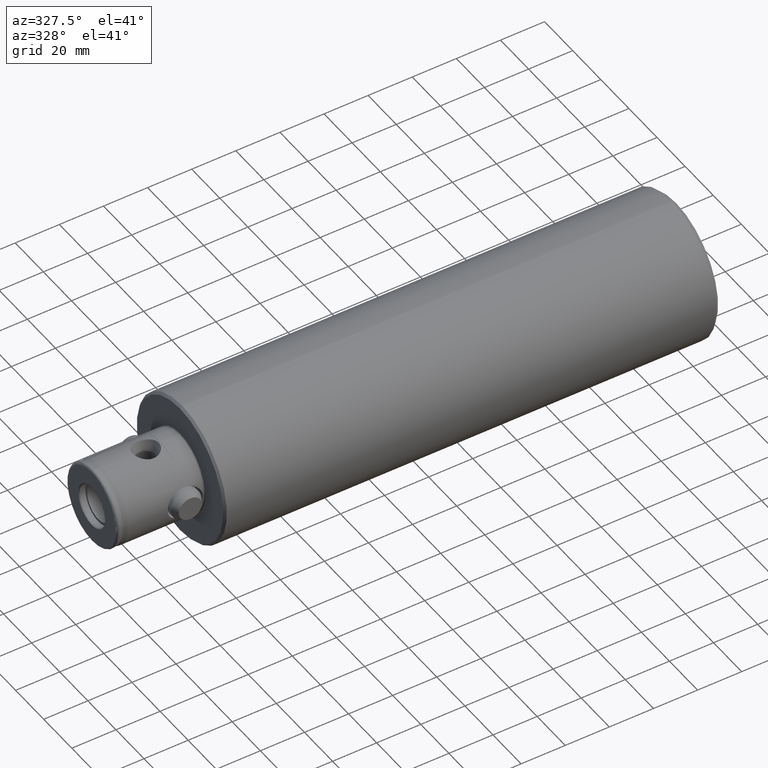
[diagram: clean part render]
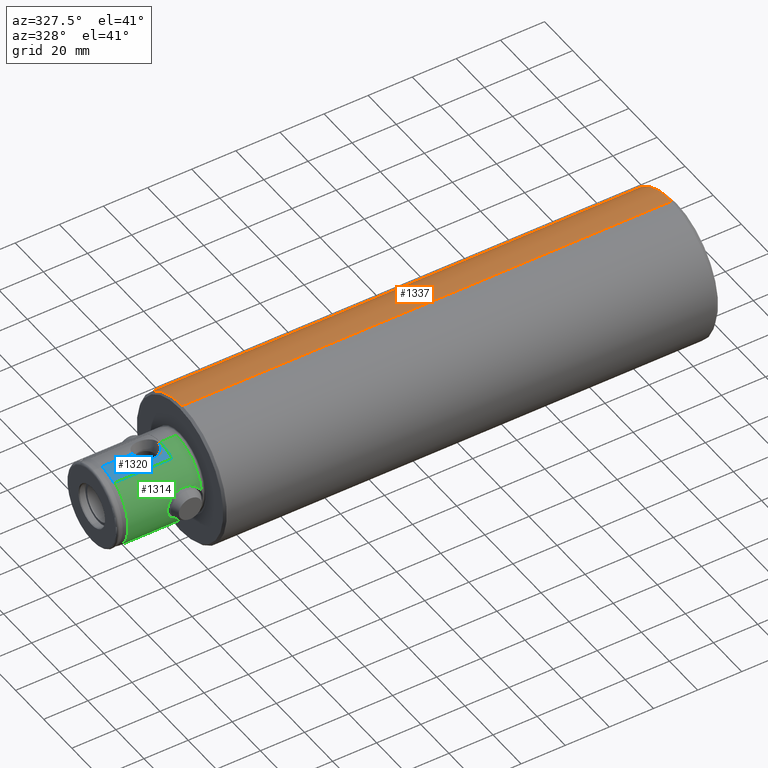
[diagram: same view with three faces highlighted in distinct colors, each labeled with its STEP entity id]
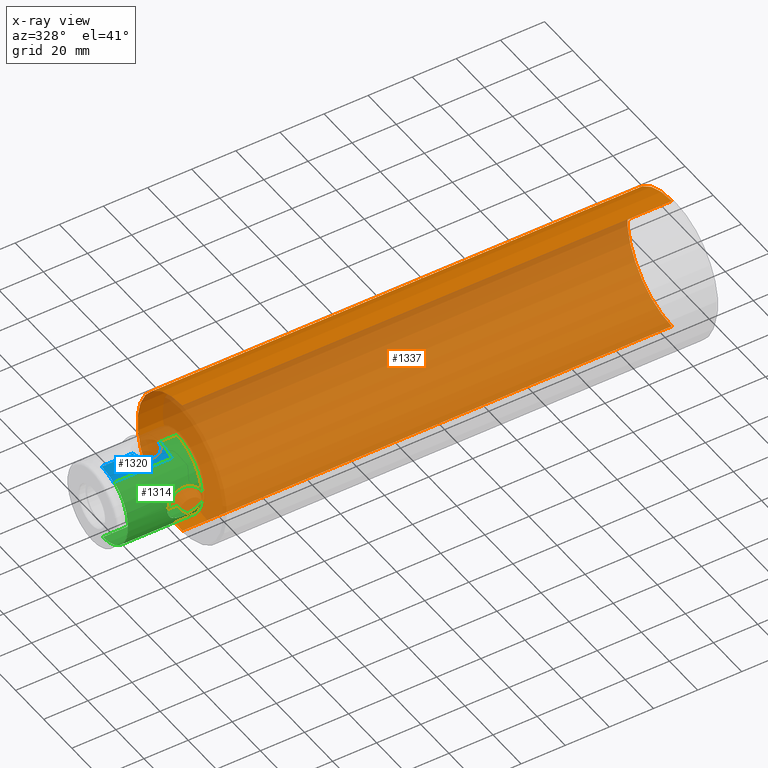
[diagram: x-ray of the same camera — body ghosted, the three highlighted faces saturated]
A machine part, auxiliary view with three faces highlighted in distinct colors.
The next image is the same camera in x-ray (body ghosted, the three faces saturated) — at least one of them is partly hidden behind the body in this view.
Their STEP definitions:

[orange] entity #1337 — the highlighted cylindrical surface (partial cylindrical patch) has radius 31.75 mm, axis along (-1, -0, -0).
#114 = ORIENTED_EDGE ( 'NONE', *, *, #2039, .T. ) ;
#128 = ORIENTED_EDGE ( 'NONE', *, *, #2017, .F. ) ;
#144 = ORIENTED_EDGE ( 'NONE', *, *, #2042, .F. ) ;
#399 = DIRECTION ( 'NONE',  ( 0.0000000000000000000, 0.0000000000000000000, 1.000000000000000000 ) ) ;
#400 = CARTESIAN_POINT ( 'NONE',  ( 0.0000000000000000000, 0.0000000000000000000, 0.0000000000000000000 ) ) ;
#401 = DIRECTION ( 'NONE',  ( -1.000000000000000000, -0.0000000000000000000, -0.0000000000000000000 ) ) ;
#525 = CARTESIAN_POINT ( 'NONE',  ( 0.0000000000000000000, 0.0000000000000000000, 31.75000000000000000 ) ) ;
#526 = DIRECTION ( 'NONE',  ( -1.000000000000000000, -0.0000000000000000000, -0.0000000000000000000 ) ) ;
#760 = CARTESIAN_POINT ( 'NONE',  ( 0.0000000000000000000, 3.888253587292846500E-015, -31.75000000000000000 ) ) ;
#761 = DIRECTION ( 'NONE',  ( -1.000000000000000000, -0.0000000000000000000, -0.0000000000000000000 ) ) ;
#768 = CARTESIAN_POINT ( 'NONE',  ( 41.00000000000000000, 0.0000000000000000000, 0.0000000000000000000 ) ) ;
#769 = DIRECTION ( 'NONE',  ( -1.000000000000000000, -0.0000000000000000000, -0.0000000000000000000 ) ) ;
#770 = DIRECTION ( 'NONE',  ( 0.0000000000000000000, 0.0000000000000000000, 1.000000000000000000 ) ) ;
#1337 = ADVANCED_FACE ( 'NONE', ( #3098 ), #3097, .T. ) ;
#1438 = CARTESIAN_POINT ( 'NONE',  ( 263.0000000000000000, 0.0000000000000000000, 31.75000000000000000 ) ) ;
#1439 = CARTESIAN_POINT ( 'NONE',  ( 263.0000000000000000, 3.888253587292846500E-015, -31.75000000000000000 ) ) ;
#1479 = CARTESIAN_POINT ( 'NONE',  ( 41.00000000000000000, 0.0000000000000000000, 31.75000000000000000 ) ) ;
#1480 = CARTESIAN_POINT ( 'NONE',  ( 41.00000000000000000, 3.888253587292846500E-015, -31.75000000000000000 ) ) ;
#1621 = CARTESIAN_POINT ( 'NONE',  ( 263.0000000000000000, 0.0000000000000000000, 0.0000000000000000000 ) ) ;
#1622 = DIRECTION ( 'NONE',  ( -1.000000000000000000, -0.0000000000000000000, -0.0000000000000000000 ) ) ;
#1623 = DIRECTION ( 'NONE',  ( 0.0000000000000000000, 0.0000000000000000000, 1.000000000000000000 ) ) ;
#1880 = EDGE_LOOP ( 'NONE', ( #2000, #114, #144, #128 ) ) ;
#2000 = ORIENTED_EDGE ( 'NONE', *, *, #2737, .T. ) ;
#2017 = EDGE_CURVE ( 'NONE', #2578, #2619, #3133, .T. ) ;
#2039 = EDGE_CURVE ( 'NONE', #2579, #2620, #3159, .T. ) ;
#2042 = EDGE_CURVE ( 'NONE', #2619, #2620, #3163, .T. ) ;
#2387 = CIRCLE ( 'NONE', #2940, 31.75000000000000000 ) ;
#2578 = VERTEX_POINT ( 'NONE', #1438 ) ;
#2579 = VERTEX_POINT ( 'NONE', #1439 ) ;
#2619 = VERTEX_POINT ( 'NONE', #1479 ) ;
#2620 = VERTEX_POINT ( 'NONE', #1480 ) ;
#2737 = EDGE_CURVE ( 'NONE', #2578, #2579, #2387, .T. ) ;
#2840 = AXIS2_PLACEMENT_3D ( 'NONE', #400, #401, #399 ) ;
#2861 = AXIS2_PLACEMENT_3D ( 'NONE', #768, #769, #770 ) ;
#2940 = AXIS2_PLACEMENT_3D ( 'NONE', #1621, #1622, #1623 ) ;
#3097 = CYLINDRICAL_SURFACE ( 'NONE', #2840, 31.75000000000000000 ) ;
#3098 = FACE_OUTER_BOUND ( 'NONE', #1880, .T. ) ;
#3133 = LINE ( 'NONE', #525, #3136 ) ;
#3136 = VECTOR ( 'NONE', #526, 1000.000000000000000 ) ;
#3159 = LINE ( 'NONE', #760, #3162 ) ;
#3162 = VECTOR ( 'NONE', #761, 1000.000000000000000 ) ;
#3163 = CIRCLE ( 'NONE', #2861, 31.75000000000000000 ) ;

[blue] entity #1320 — the highlighted cylindrical surface (partial cylindrical patch) has radius 18 mm, axis along (-1, 0, 0).
#32 = B_SPLINE_CURVE_WITH_KNOTS ( 'NONE', 3,
 ( #1627, #1624, #1629, #1630, #1631, #1632, #1633, #1634 ),
 .UNSPECIFIED., .F., .F.,
 ( 4, 2, 2, 4 ),
 ( 0.008809959860789792800, 0.01101086519072195400, 0.01321177052065411300, 0.01761358118051843300 ),
 .UNSPECIFIED. ) ;
#33 = B_SPLINE_CURVE_WITH_KNOTS ( 'NONE', 3,
 ( #1643, #1644, #1650, #1651, #1652, #1653, #1654, #1655, #1656, #1657, #1658, #1659, #1660, #1661, #1662, #1663, #1664, #1665, #1666, #1667, #1668, #1669, #1670, #1671, #1672, #1673, #1674, #1675, #1676, #1677, #1678, #1679, #1680, #1681, #1682, #1683, #1684, #1685, #1686, #1687, #1688, #1689 ),
 .UNSPECIFIED., .F., .F.,
 ( 4, 2, 2, 2, 2, 2, 2, 2, 2, 2, 2, 2, 2, 2, 2, 2, 2, 2, 2, 2, 4 ),
 ( 0.03175598414755257500, 0.03289099882672464500, 0.03345850616631067900, 0.03402601350589671400, 0.03516102818506878400, 0.03629604286424084600, 0.03743105754341291600, 0.03856607222258498500, 0.03970108690175704800, 0.04026859424134308900, 0.04083610158092912400, 0.04197111626010119300, 0.04310613093927326300, 0.04424114561844533200, 0.04480865295803136000, 0.04537616029761739500, 0.04651117497678947100, 0.04764618965596154100, 0.04821369699554757500, 0.04878120433513361000, 0.04991621901430568600 ),
 .UNSPECIFIED. ) ;
#72 = EDGE_LOOP ( 'NONE', ( #2549, #2550, #2551, #2552, #2553, #1890 ) ) ;
#344 = DIRECTION ( 'NONE',  ( 0.0000000000000000000, 0.0000000000000000000, 1.000000000000000000 ) ) ;
#345 = CARTESIAN_POINT ( 'NONE',  ( 31.00000000000000000, 0.0000000000000000000, -0.06999999999999996500 ) ) ;
#346 = DIRECTION ( 'NONE',  ( -1.000000000000000000, 0.0000000000000000000, 0.0000000000000000000 ) ) ;
#1320 = ADVANCED_FACE ( 'NONE', ( #3066 ), #3071, .T. ) ;
#1423 = CARTESIAN_POINT ( 'NONE',  ( 31.00000000000000000, -8.499999999999996400, 15.79663165262243400 ) ) ;
#1440 = CARTESIAN_POINT ( 'NONE',  ( 31.00000000000000000, 0.0000000000000000000, 17.93000000000000000 ) ) ;
#1442 = CARTESIAN_POINT ( 'NONE',  ( 18.57554470225370100, 7.387272118025272300E-015, 17.93000000000003200 ) ) ;
#1443 = CARTESIAN_POINT ( 'NONE',  ( 30.42445529774620600, -1.071667539742744500E-023, 17.93000000000000000 ) ) ;
#1445 = CARTESIAN_POINT ( 'NONE',  ( 4.501924119433152100, 1.318032018692837200E-015, 17.93000000000000000 ) ) ;
#1446 = CARTESIAN_POINT ( 'NONE',  ( 4.561173011721219700, -8.499999999999996400, 15.79663165262243400 ) ) ;
#1563 = CARTESIAN_POINT ( 'NONE',  ( 31.00000000000000000, -8.499999999999996400, 15.79663165262243400 ) ) ;
#1564 = DIRECTION ( 'NONE',  ( -1.000000000000000000, 0.0000000000000000000, 0.0000000000000000000 ) ) ;
#1624 = CARTESIAN_POINT ( 'NONE',  ( 4.501924119433151200, -0.7337060415290775900, 17.93000000000000000 ) ) ;
#1626 = CARTESIAN_POINT ( 'NONE',  ( 31.00000000000000000, 0.0000000000000000000, 17.93000000000000000 ) ) ;
#1627 = CARTESIAN_POINT ( 'NONE',  ( 4.501924119433152100, 1.318032018692837200E-015, 17.93000000000000000 ) ) ;
#1628 = DIRECTION ( 'NONE',  ( -1.000000000000000000, 0.0000000000000000000, 0.0000000000000000000 ) ) ;
#1629 = CARTESIAN_POINT ( 'NONE',  ( 4.503165590156450900, -1.466782719062482500, 17.88530954530815000 ) ) ;
#1630 = CARTESIAN_POINT ( 'NONE',  ( 4.508174742434701600, -2.931655298299229400, 17.70498212726888100 ) ) ;
#1631 = CARTESIAN_POINT ( 'NONE',  ( 4.511979581276668800, -3.666865337209433800, 17.56800739893154200 ) ) ;
#1632 = CARTESIAN_POINT ( 'NONE',  ( 4.526961478556947000, -5.815333669717912100, 17.02861748603704200 ) ) ;
#1633 = CARTESIAN_POINT ( 'NONE',  ( 4.541659314675777100, -7.188126997925746100, 16.49942231177207600 ) ) ;
#1634 = CARTESIAN_POINT ( 'NONE',  ( 4.561173011721219700, -8.499999999999996400, 15.79663165262243400 ) ) ;
#1635 = CARTESIAN_POINT ( 'NONE',  ( 31.00000000000000000, 0.0000000000000000000, -0.06999999999999996500 ) ) ;
#1636 = DIRECTION ( 'NONE',  ( -1.000000000000000000, -0.0000000000000000000, -0.0000000000000000000 ) ) ;
#1637 = DIRECTION ( 'NONE',  ( 0.0000000000000000000, 0.0000000000000000000, -1.000000000000000000 ) ) ;
#1638 = CARTESIAN_POINT ( 'NONE',  ( 31.00000000000000000, 0.0000000000000000000, 17.93000000000000000 ) ) ;
#1639 = DIRECTION ( 'NONE',  ( -1.000000000000000000, 0.0000000000000000000, 0.0000000000000000000 ) ) ;
#1643 = CARTESIAN_POINT ( 'NONE',  ( 18.57554470225370100, 7.387272118025272300E-015, 17.93000000000003200 ) ) ;
#1644 = CARTESIAN_POINT ( 'NONE',  ( 18.57554470225379400, -0.3831136838248300800, 17.93000000000000000 ) ) ;
#1650 = CARTESIAN_POINT ( 'NONE',  ( 18.61557294335920400, -0.7615478417170330500, 17.91778346280447900 ) ) ;
#1651 = CARTESIAN_POINT ( 'NONE',  ( 18.73492686664313200, -1.322296669584290400, 17.88234270986931700 ) ) ;
#1652 = CARTESIAN_POINT ( 'NONE',  ( 18.78506986485922400, -1.509078302526126300, 17.86755934289542200 ) ) ;
#1653 = CARTESIAN_POINT ( 'NONE',  ( 18.90338198084888100, -1.872716497970738900, 17.83324790146408000 ) ) ;
#1654 = CARTESIAN_POINT ( 'NONE',  ( 18.97153989019681200, -2.050110156723244700, 17.81372150429449200 ) ) ;
#1655 = CARTESIAN_POINT ( 'NONE',  ( 19.20209450050449700, -2.569569579887862600, 17.74906558059581100 ) ) ;
#1656 = CARTESIAN_POINT ( 'NONE',  ( 19.39192034899709300, -2.901195590925283800, 17.69744489833552200 ) ) ;
#1657 = CARTESIAN_POINT ( 'NONE',  ( 19.83483833083843000, -3.520494726701620000, 17.58517348970151800 ) ) ;
#1658 = CARTESIAN_POINT ( 'NONE',  ( 20.08494431174514700, -3.805031565792131900, 17.52525899257014400 ) ) ;
#1659 = CARTESIAN_POINT ( 'NONE',  ( 20.64195123594209100, -4.325654087729326100, 17.40455638766276900 ) ) ;
#1660 = CARTESIAN_POINT ( 'NONE',  ( 20.94034946229247800, -4.553824916090396100, 17.34565856833051700 ) ) ;
#1661 = CARTESIAN_POINT ( 'NONE',  ( 21.57490829159470300, -4.951432438418799500, 17.23681373167354600 ) ) ;
#1662 = CARTESIAN_POINT ( 'NONE',  ( 21.91104107646931700, -5.120805884859581900, 17.18683709147466100 ) ) ;
#1663 = CARTESIAN_POINT ( 'NONE',  ( 22.62338941257611000, -5.398507192310133500, 17.10198880172835700 ) ) ;
#1664 = CARTESIAN_POINT ( 'NONE',  ( 22.99088402668140300, -5.503021733578008500, 17.06832382586234000 ) ) ;
#1665 = CARTESIAN_POINT ( 'NONE',  ( 23.55033296111776800, -5.607752895763296100, 17.03422332057631600 ) ) ;
#1666 = CARTESIAN_POINT ( 'NONE',  ( 23.73864113217325300, -5.634102640128214800, 17.02553254342923200 ) ) ;
#1667 = CARTESIAN_POINT ( 'NONE',  ( 24.11898480793087500, -5.669398008010491100, 17.01385997746745500 ) ) ;
#1668 = CARTESIAN_POINT ( 'NONE',  ( 24.31210376769511700, -5.678318216710273700, 17.01088704511940400 ) ) ;
#1669 = CARTESIAN_POINT ( 'NONE',  ( 24.88821135867466300, -5.677932562585729300, 17.01101524758219300 ) ) ;
#1670 = CARTESIAN_POINT ( 'NONE',  ( 25.26696886245772700, -5.642236274775486400, 17.02299926818011100 ) ) ;
#1671 = CARTESIAN_POINT ( 'NONE',  ( 26.01419118754804000, -5.501786752466307100, 17.06872214293657600 ) ) ;
#1672 = CARTESIAN_POINT ( 'NONE',  ( 26.38627019785123600, -5.395240042650288000, 17.10301079295810900 ) ) ;
#1673 = CARTESIAN_POINT ( 'NONE',  ( 27.09328471493246600, -5.118611019039358100, 17.18748347959928000 ) ) ;
#1674 = CARTESIAN_POINT ( 'NONE',  ( 27.43017621194513100, -4.948965417227853400, 17.23755263737323400 ) ) ;
#1675 = CARTESIAN_POINT ( 'NONE',  ( 27.91080199915923600, -4.646718315353849600, 17.32019603531960800 ) ) ;
#1676 = CARTESIAN_POINT ( 'NONE',  ( 28.06765884811124300, -4.537289672149269900, 17.34916469177915500 ) ) ;
#1677 = CARTESIAN_POINT ( 'NONE',  ( 28.36779536209322600, -4.305483147489617600, 17.40790350685691100 ) ) ;
#1678 = CARTESIAN_POINT ( 'NONE',  ( 28.51121673220889700, -4.183164077528353200, 17.43767209451188200 ) ) ;
#1679 = CARTESIAN_POINT ( 'NONE',  ( 28.92198423547164800, -3.797120882136648200, 17.52692156260111700 ) ) ;
#1680 = CARTESIAN_POINT ( 'NONE',  ( 29.17004880996612200, -3.514525437097584200, 17.58636581486995700 ) ) ;
#1681 = CARTESIAN_POINT ( 'NONE',  ( 29.61198953805598300, -2.894847298418376200, 17.69848338928661500 ) ) ;
#1682 = CARTESIAN_POINT ( 'NONE',  ( 29.80049634298832800, -2.564430172086265000, 17.74977998943963400 ) ) ;
#1683 = CARTESIAN_POINT ( 'NONE',  ( 30.02971255283868900, -2.046933455186016100, 17.81407891603380700 ) ) ;
#1684 = CARTESIAN_POINT ( 'NONE',  ( 30.09746334228503200, -1.870298372181085300, 17.83349168383869800 ) ) ;
#1685 = CARTESIAN_POINT ( 'NONE',  ( 30.21508621675754800, -1.508417022360138700, 17.86760598744768200 ) ) ;
#1686 = CARTESIAN_POINT ( 'NONE',  ( 30.26519079791910000, -1.321911464954058600, 17.88237726613494900 ) ) ;
#1687 = CARTESIAN_POINT ( 'NONE',  ( 30.38481521319514300, -0.7593876761666518100, 17.91789949006138000 ) ) ;
#1688 = CARTESIAN_POINT ( 'NONE',  ( 30.42445529774621300, -0.3812456403072548800, 17.93000000000000300 ) ) ;
#1689 = CARTESIAN_POINT ( 'NONE',  ( 30.42445529774620600, -1.071667539742744500E-023, 17.93000000000000000 ) ) ;
#1890 = ORIENTED_EDGE ( 'NONE', *, *, #2730, .F. ) ;
#2377 = LINE ( 'NONE', #1563, #2380 ) ;
#2380 = VECTOR ( 'NONE', #1564, 1000.000000000000000 ) ;
#2391 = LINE ( 'NONE', #1626, #2394 ) ;
#2394 = VECTOR ( 'NONE', #1628, 1000.000000000000000 ) ;
#2395 = CIRCLE ( 'NONE', #2941, 18.00000000000000400 ) ;
#2397 = LINE ( 'NONE', #1638, #2399 ) ;
#2399 = VECTOR ( 'NONE', #1639, 1000.000000000000000 ) ;
#2549 = ORIENTED_EDGE ( 'NONE', *, *, #2742, .T. ) ;
#2550 = ORIENTED_EDGE ( 'NONE', *, *, #2740, .T. ) ;
#2551 = ORIENTED_EDGE ( 'NONE', *, *, #2746, .F. ) ;
#2552 = ORIENTED_EDGE ( 'NONE', *, *, #2745, .T. ) ;
#2553 = ORIENTED_EDGE ( 'NONE', *, *, #2741, .T. ) ;
#2563 = VERTEX_POINT ( 'NONE', #1423 ) ;
#2580 = VERTEX_POINT ( 'NONE', #1440 ) ;
#2582 = VERTEX_POINT ( 'NONE', #1442 ) ;
#2583 = VERTEX_POINT ( 'NONE', #1443 ) ;
#2585 = VERTEX_POINT ( 'NONE', #1445 ) ;
#2586 = VERTEX_POINT ( 'NONE', #1446 ) ;
#2730 = EDGE_CURVE ( 'NONE', #2563, #2586, #2377, .T. ) ;
#2740 = EDGE_CURVE ( 'NONE', #2580, #2583, #2391, .T. ) ;
#2741 = EDGE_CURVE ( 'NONE', #2585, #2586, #32, .T. ) ;
#2742 = EDGE_CURVE ( 'NONE', #2563, #2580, #2395, .T. ) ;
#2745 = EDGE_CURVE ( 'NONE', #2582, #2585, #2397, .T. ) ;
#2746 = EDGE_CURVE ( 'NONE', #2582, #2583, #33, .T. ) ;
#2823 = AXIS2_PLACEMENT_3D ( 'NONE', #345, #346, #344 ) ;
#2941 = AXIS2_PLACEMENT_3D ( 'NONE', #1635, #1636, #1637 ) ;
#3066 = FACE_OUTER_BOUND ( 'NONE', #72, .T. ) ;
#3071 = CYLINDRICAL_SURFACE ( 'NONE', #2823, 18.00000000000000400 ) ;

[green] entity #1314 — the highlighted cylindrical surface (partial cylindrical patch) has radius 18 mm, axis along (-1, -0, -0).
#13 = B_SPLINE_CURVE_WITH_KNOTS ( 'NONE', 3,
 ( #662, #661, #668, #669, #670, #671, #672, #673, #674, #675, #676, #677, #678, #679, #680, #681, #682, #683, #684, #685, #686, #687, #688, #689, #690, #691, #692, #693, #694, #695, #696, #697, #698, #699, #700, #701, #702, #703, #704, #705 ),
 .UNSPECIFIED., .F., .F.,
 ( 4, 2, 2, 2, 2, 2, 2, 2, 2, 2, 2, 2, 2, 2, 2, 2, 2, 2, 2, 4 ),
 ( 0.005951930373223755100, 0.007274197686235172500, 0.008596464999246589800, 0.009918732312258007200, 0.01124099962526942600, 0.01190213328177513200, 0.01256326693828083800, 0.01388553425129225800, 0.01520780156430367800, 0.01653006887731509700, 0.01719120253382081000, 0.01785233619032652900, 0.01917460350333796700, 0.01983573715984368900, 0.02049687081634941200, 0.02181913812936082600, 0.02314140544237224300, 0.02446367275538366100, 0.02578594006839508200, 0.02710820738140650200 ),
 .UNSPECIFIED. ) ;
#23 = B_SPLINE_CURVE_WITH_KNOTS ( 'NONE', 3,
 ( #1034, #1035, #1039, #1040, #1041, #1042, #1043, #1044, #1045, #1046, #1047, #1048, #1049, #1050, #1051, #1052, #1053, #1054, #1055, #1056, #1057, #1058, #1059, #1060, #1061, #1062, #1063, #1064, #1065, #1066, #1067, #1068, #1069, #1070, #1071, #1072, #1073, #1074 ),
 .UNSPECIFIED., .F., .F.,
 ( 4, 2, 2, 2, 2, 2, 2, 2, 2, 2, 2, 2, 2, 2, 2, 2, 2, 2, 4 ),
 ( 0.03295201915210513300, 0.03427289837824195500, 0.03559377760437877600, 0.03691465683051559800, 0.03823553605665242600, 0.03955641528278924800, 0.04087729450892606900, 0.04219817373506289100, 0.04351905296119972000, 0.04483993218733655500, 0.04616081141347339000, 0.04748169063961021900, 0.04814213025267863300, 0.04880256986574705400, 0.05012344909188390400, 0.05144432831802074600, 0.05276520754415758900, 0.05342564715722601000, 0.05408608677029443100 ),
 .UNSPECIFIED. ) ;
#326 = DIRECTION ( 'NONE',  ( 0.0000000000000000000, 0.0000000000000000000, 1.000000000000000000 ) ) ;
#327 = CARTESIAN_POINT ( 'NONE',  ( 0.0000000000000000000, 0.0000000000000000000, 0.0000000000000000000 ) ) ;
#328 = DIRECTION ( 'NONE',  ( -1.000000000000000000, -0.0000000000000000000, -0.0000000000000000000 ) ) ;
#661 = CARTESIAN_POINT ( 'NONE',  ( 22.93190200199921200, -18.00000000000000000, 0.4416652142448477800 ) ) ;
#662 = CARTESIAN_POINT ( 'NONE',  ( 22.93190200199920200, -17.99999999999999600, 4.441690793177769600E-021 ) ) ;
#668 = CARTESIAN_POINT ( 'NONE',  ( 22.97716631395284300, -17.98376514896291700, 0.8812749548977210100 ) ) ;
#669 = CARTESIAN_POINT ( 'NONE',  ( 23.16028841739990100, -17.91948188900300600, 1.756309570911909000 ) ) ;
#670 = CARTESIAN_POINT ( 'NONE',  ( 23.29503960607756200, -17.87255946622037300, 2.176647487686613300 ) ) ;
#671 = CARTESIAN_POINT ( 'NONE',  ( 23.64278849125274800, -17.75569677428627800, 2.983522786713074500 ) ) ;
#672 = CARTESIAN_POINT ( 'NONE',  ( 23.85847120594464200, -17.68492855341568800, 3.373394558111742800 ) ) ;
#673 = CARTESIAN_POINT ( 'NONE',  ( 24.35063099387324900, -17.53161761748235000, 4.096202204298264400 ) ) ;
#674 = CARTESIAN_POINT ( 'NONE',  ( 24.62761903909061400, -17.44884491123164900, 4.431981430358424800 ) ) ;
#675 = CARTESIAN_POINT ( 'NONE',  ( 25.08744042483029400, -17.32095608078512300, 4.900065558880498000 ) ) ;
#676 = CARTESIAN_POINT ( 'NONE',  ( 25.24843004934503900, -17.27764558184226800, 5.050242172774598100 ) ) ;
#677 = CARTESIAN_POINT ( 'NONE',  ( 25.57977056106120300, -17.19210908527251600, 5.334169856267678300 ) ) ;
#678 = CARTESIAN_POINT ( 'NONE',  ( 25.75073583273174500, -17.14970568692032100, 5.468593516449462100 ) ) ;
#679 = CARTESIAN_POINT ( 'NONE',  ( 26.27907961518929300, -17.02485688331502400, 5.850293059941749100 ) ) ;
#680 = CARTESIAN_POINT ( 'NONE',  ( 26.65178746641845800, -16.94475705747026200, 6.076163919882772800 ) ) ;
#681 = CARTESIAN_POINT ( 'NONE',  ( 27.43890271601962600, -16.79760225473844300, 6.471871306629907400 ) ) ;
#682 = CARTESIAN_POINT ( 'NONE',  ( 27.84631252032698600, -16.73197632104198000, 6.637923214853056000 ) ) ;
#683 = CARTESIAN_POINT ( 'NONE',  ( 28.67993101842047600, -16.62278497628824800, 6.906813726044728900 ) ) ;
#684 = CARTESIAN_POINT ( 'NONE',  ( 29.10744282103609800, -16.57896270672707200, 7.010286325545902000 ) ) ;
#685 = CARTESIAN_POINT ( 'NONE',  ( 29.76544652395585200, -16.53279694942170500, 7.118156694572547800 ) ) ;
#686 = CARTESIAN_POINT ( 'NONE',  ( 29.98759883883632000, -16.52071364908083200, 7.146080882712132300 ) ) ;
#687 = CARTESIAN_POINT ( 'NONE',  ( 30.42950263124843200, -16.50379690978528300, 7.185063605685842300 ) ) ;
#688 = CARTESIAN_POINT ( 'NONE',  ( 30.65026060274260500, -16.49888225444744800, 7.196311294525649800 ) ) ;
#689 = CARTESIAN_POINT ( 'NONE',  ( 31.31196230718752500, -16.49474406451295000, 7.205793906403901200 ) ) ;
#690 = CARTESIAN_POINT ( 'NONE',  ( 31.75233693816384300, -16.50614080132864100, 7.179931034761770200 ) ) ;
#691 = CARTESIAN_POINT ( 'NONE',  ( 32.41174086432555900, -16.54411024394628900, 7.091786777001734900 ) ) ;
#692 = CARTESIAN_POINT ( 'NONE',  ( 32.63229722781335300, -16.56034169485642900, 7.053902984147537600 ) ) ;
#693 = CARTESIAN_POINT ( 'NONE',  ( 33.06632984982247300, -16.59899749722229600, 6.962452617244408300 ) ) ;
#694 = CARTESIAN_POINT ( 'NONE',  ( 33.28019592390903400, -16.62140980620988300, 6.908915790884719900 ) ) ;
#695 = CARTESIAN_POINT ( 'NONE',  ( 33.91261362665141400, -16.69695338979934000, 6.725271214225778700 ) ) ;
#696 = CARTESIAN_POINT ( 'NONE',  ( 34.32204564670358600, -16.75839360627169900, 6.572304845395327900 ) ) ;
#697 = CARTESIAN_POINT ( 'NONE',  ( 35.11653427350414300, -16.89846424721143600, 6.203293748425248400 ) ) ;
#698 = CARTESIAN_POINT ( 'NONE',  ( 35.50250194721001400, -16.97748648343946000, 5.985874656659777100 ) ) ;
#699 = CARTESIAN_POINT ( 'NONE',  ( 36.22267140391623000, -17.14109667194910700, 5.499867960552037100 ) ) ;
#700 = CARTESIAN_POINT ( 'NONE',  ( 36.56052000145321300, -17.22626953673155400, 5.229929271370539600 ) ) ;
#701 = CARTESIAN_POINT ( 'NONE',  ( 37.19036873887327500, -17.39649253758278700, 4.632339552050337000 ) ) ;
#702 = CARTESIAN_POINT ( 'NONE',  ( 37.48454750326428800, -17.48229323643473500, 4.300980811526033100 ) ) ;
#703 = CARTESIAN_POINT ( 'NONE',  ( 38.00068325230647300, -17.63995700660955600, 3.600129101959181000 ) ) ;
#704 = CARTESIAN_POINT ( 'NONE',  ( 38.22531472327443000, -17.71246892246847400, 3.229107380082117300 ) ) ;
#705 = CARTESIAN_POINT ( 'NONE',  ( 38.41455850893560600, -17.77522644697580400, 2.835722969320484000 ) ) ;
#933 = DIRECTION ( 'NONE',  ( -1.000000000000000000, -0.0000000000000000000, -0.0000000000000000000 ) ) ;
#934 = CARTESIAN_POINT ( 'NONE',  ( 0.0000000000000000000, 2.204364238465235000E-015, -17.99999999999999600 ) ) ;
#938 = CARTESIAN_POINT ( 'NONE',  ( 0.0000000000000000000, 0.0000000000000000000, 17.99999999999999600 ) ) ;
#939 = DIRECTION ( 'NONE',  ( -1.000000000000000000, -0.0000000000000000000, -0.0000000000000000000 ) ) ;
#1034 = CARTESIAN_POINT ( 'NONE',  ( 38.41455850893858300, -17.77522644697679200, -2.835722969314299600 ) ) ;
#1035 = CARTESIAN_POINT ( 'NONE',  ( 38.22406851140457500, -17.71205565039355200, -3.231697902780590300 ) ) ;
#1036 = CARTESIAN_POINT ( 'NONE',  ( 38.41455850893560600, 0.0000000000000000000, 0.0000000000000000000 ) ) ;
#1037 = DIRECTION ( 'NONE',  ( -1.000000000000000000, -0.0000000000000000000, -0.0000000000000000000 ) ) ;
#1038 = DIRECTION ( 'NONE',  ( 0.0000000000000000000, 0.0000000000000000000, 1.000000000000000000 ) ) ;
#1039 = CARTESIAN_POINT ( 'NONE',  ( 37.99737733481455100, -17.63888073545498300, -3.605730414532307500 ) ) ;
#1040 = CARTESIAN_POINT ( 'NONE',  ( 37.47487734172190700, -17.47940738018480300, -4.312971488362685500 ) ) ;
#1041 = CARTESIAN_POINT ( 'NONE',  ( 37.18323317712317800, -17.39446115788247100, -4.639958106280455600 ) ) ;
#1042 = CARTESIAN_POINT ( 'NONE',  ( 36.55175607009103100, -17.22400654163418600, -5.237374232844398000 ) ) ;
#1043 = CARTESIAN_POINT ( 'NONE',  ( 36.20853074206343100, -17.13760555766047100, -5.510798793975826700 ) ) ;
#1044 = CARTESIAN_POINT ( 'NONE',  ( 35.48057514054242700, -16.97279783775291100, -5.999213378136383700 ) ) ;
#1045 = CARTESIAN_POINT ( 'NONE',  ( 35.10015966050625700, -16.89530342579888600, -6.211851895944372300 ) ) ;
#1046 = CARTESIAN_POINT ( 'NONE',  ( 34.30740257987290700, -16.75609685185863300, -6.578115240560359600 ) ) ;
#1047 = CARTESIAN_POINT ( 'NONE',  ( 33.89231608736141500, -16.69405454435277700, -6.732461026109822600 ) ) ;
#1048 = CARTESIAN_POINT ( 'NONE',  ( 33.04093780856270300, -16.59333215361803200, -6.977020613243097600 ) ) ;
#1049 = CARTESIAN_POINT ( 'NONE',  ( 32.60970099531380100, -16.55512022111239300, -7.066251102985179800 ) ) ;
#1050 = CARTESIAN_POINT ( 'NONE',  ( 31.73633254173760700, -16.50562532435845900, -7.181103176937407200 ) ) ;
#1051 = CARTESIAN_POINT ( 'NONE',  ( 31.29363049005992500, -16.49434342331984400, -7.206712442522943200 ) ) ;
#1052 = CARTESIAN_POINT ( 'NONE',  ( 30.39909201430822700, -16.50099729352224600, -7.191464212161554000 ) ) ;
#1053 = CARTESIAN_POINT ( 'NONE',  ( 29.95851443945989000, -16.51880896593881700, -7.150883250577736700 ) ) ;
#1054 = CARTESIAN_POINT ( 'NONE',  ( 29.09011447363878100, -16.58064351969850500, -7.006314394120051000 ) ) ;
#1055 = CARTESIAN_POINT ( 'NONE',  ( 28.66229112130640300, -16.62467098836315000, -6.902334032149218100 ) ) ;
#1056 = CARTESIAN_POINT ( 'NONE',  ( 27.81968067271641600, -16.73591214434289000, -6.628057427295310300 ) ) ;
#1057 = CARTESIAN_POINT ( 'NONE',  ( 27.41257878505567900, -16.80216269797455600, -6.459979171950007700 ) ) ;
#1058 = CARTESIAN_POINT ( 'NONE',  ( 26.63570597471756300, -16.94814475933928200, -6.066662298802851800 ) ) ;
#1059 = CARTESIAN_POINT ( 'NONE',  ( 26.26420708163042800, -17.02812404450211800, -5.840901414676892500 ) ) ;
#1060 = CARTESIAN_POINT ( 'NONE',  ( 25.73327453191549500, -17.15396436244323700, -5.455253532582948300 ) ) ;
#1061 = CARTESIAN_POINT ( 'NONE',  ( 25.56015308524299800, -17.19704328115419800, -5.318273061020192000 ) ) ;
#1062 = CARTESIAN_POINT ( 'NONE',  ( 25.22840492436980100, -17.28296177478780700, -5.032053085638831500 ) ) ;
#1063 = CARTESIAN_POINT ( 'NONE',  ( 25.06975994152871900, -17.32577972285147900, -4.882950912793208300 ) ) ;
#1064 = CARTESIAN_POINT ( 'NONE',  ( 24.61529698484641300, -17.45247515064767900, -4.417524374817166900 ) ) ;
#1065 = CARTESIAN_POINT ( 'NONE',  ( 24.34074858595555900, -17.53461846900398100, -4.083252654465629100 ) ) ;
#1066 = CARTESIAN_POINT ( 'NONE',  ( 23.85193255658429100, -17.68704561772397100, -3.362174060081847500 ) ) ;
#1067 = CARTESIAN_POINT ( 'NONE',  ( 23.63709388327816500, -17.75758443946106600, -2.971962046660371100 ) ) ;
#1068 = CARTESIAN_POINT ( 'NONE',  ( 23.29266158553753400, -17.87338526429944700, -2.169438343282098700 ) ) ;
#1069 = CARTESIAN_POINT ( 'NONE',  ( 23.15995626466844500, -17.91960077692835200, -1.753618157681375000 ) ) ;
#1070 = CARTESIAN_POINT ( 'NONE',  ( 23.02413417728703800, -17.96727639894263400, -1.106253120157848700 ) ) ;
#1071 = CARTESIAN_POINT ( 'NONE',  ( 22.98934012757171900, -17.97959825499482600, -0.8850085856029738000 ) ) ;
#1072 = CARTESIAN_POINT ( 'NONE',  ( 22.94326582020514800, -17.99594619479157800, -0.4417172871538094200 ) ) ;
#1073 = CARTESIAN_POINT ( 'NONE',  ( 22.93190200199920500, -17.99999999999999600, -0.2206007819533257800 ) ) ;
#1074 = CARTESIAN_POINT ( 'NONE',  ( 22.93190200199920200, -17.99999999999999600, 4.441690793177769600E-021 ) ) ;
#1075 = CARTESIAN_POINT ( 'NONE',  ( 0.0000000000000000000, -8.500000000000000000, 15.86663165262242700 ) ) ;
#1076 = DIRECTION ( 'NONE',  ( 1.000000000000000000, 0.0000000000000000000, 0.0000000000000000000 ) ) ;
#1077 = CARTESIAN_POINT ( 'NONE',  ( 38.41455850893560600, 0.0000000000000000000, 0.0000000000000000000 ) ) ;
#1078 = DIRECTION ( 'NONE',  ( -1.000000000000000000, -0.0000000000000000000, -0.0000000000000000000 ) ) ;
#1079 = DIRECTION ( 'NONE',  ( 0.0000000000000000000, 0.0000000000000000000, 1.000000000000000000 ) ) ;
#1080 = CARTESIAN_POINT ( 'NONE',  ( 31.00000000000000000, 0.0000000000000000000, 0.0000000000000000000 ) ) ;
#1081 = DIRECTION ( 'NONE',  ( 1.000000000000000000, 0.0000000000000000000, 0.0000000000000000000 ) ) ;
#1082 = DIRECTION ( 'NONE',  ( 0.0000000000000000000, 0.0000000000000000000, -1.000000000000000000 ) ) ;
#1085 = CARTESIAN_POINT ( 'NONE',  ( 5.000000000000000000, 0.0000000000000000000, 0.0000000000000000000 ) ) ;
#1086 = DIRECTION ( 'NONE',  ( -1.000000000000000000, -0.0000000000000000000, -0.0000000000000000000 ) ) ;
#1087 = DIRECTION ( 'NONE',  ( 0.0000000000000000000, 0.0000000000000000000, 1.000000000000000000 ) ) ;
#1314 = ADVANCED_FACE ( 'NONE', ( #3052 ), #3059, .T. ) ;
#1437 = CARTESIAN_POINT ( 'NONE',  ( 22.93190200199920200, -17.99999999999999600, 4.441690793177769600E-021 ) ) ;
#1456 = CARTESIAN_POINT ( 'NONE',  ( 38.41455850893560600, -17.77522644697580400, 2.835722969320484000 ) ) ;
#1488 = CARTESIAN_POINT ( 'NONE',  ( 38.41455850893560600, 2.204364238465235000E-015, -17.99999999999999600 ) ) ;
#1491 = CARTESIAN_POINT ( 'NONE',  ( 38.41455850893560600, 0.0000000000000000000, 17.99999999999999600 ) ) ;
#1504 = CARTESIAN_POINT ( 'NONE',  ( 31.00000000000000000, -8.499999999999996400, 15.86663165262242400 ) ) ;
#1505 = CARTESIAN_POINT ( 'NONE',  ( 5.000000000000000000, 2.204364238465235000E-015, -17.99999999999999600 ) ) ;
#1506 = CARTESIAN_POINT ( 'NONE',  ( 5.000000000000000000, -8.500000000000000000, 15.86663165262242700 ) ) ;
#1507 = CARTESIAN_POINT ( 'NONE',  ( 31.00000000000000000, 0.0000000000000000000, 17.99999999999999600 ) ) ;
#1508 = CARTESIAN_POINT ( 'NONE',  ( 38.41455850893858300, -17.77522644697679200, -2.835722969314299600 ) ) ;
#2031 = EDGE_CURVE ( 'NONE', #2577, #2596, #13, .T. ) ;
#2096 = EDGE_CURVE ( 'NONE', #2628, #2645, #2270, .T. ) ;
#2099 = EDGE_CURVE ( 'NONE', #2631, #2647, #2280, .T. ) ;
#2105 = EDGE_CURVE ( 'NONE', #2628, #2648, #2285, .T. ) ;
#2106 = EDGE_CURVE ( 'NONE', #2648, #2577, #23, .T. ) ;
#2107 = EDGE_CURVE ( 'NONE', #2596, #2631, #2289, .T. ) ;
#2108 = EDGE_CURVE ( 'NONE', #2647, #2644, #2288, .T. ) ;
#2109 = EDGE_CURVE ( 'NONE', #2646, #2644, #2287, .T. ) ;
#2110 = EDGE_CURVE ( 'NONE', #2645, #2646, #2290, .T. ) ;
#2182 = ORIENTED_EDGE ( 'NONE', *, *, #2108, .T. ) ;
#2183 = ORIENTED_EDGE ( 'NONE', *, *, #2099, .T. ) ;
#2184 = ORIENTED_EDGE ( 'NONE', *, *, #2107, .T. ) ;
#2185 = ORIENTED_EDGE ( 'NONE', *, *, #2031, .T. ) ;
#2188 = ORIENTED_EDGE ( 'NONE', *, *, #2096, .F. ) ;
#2190 = ORIENTED_EDGE ( 'NONE', *, *, #2105, .T. ) ;
#2192 = ORIENTED_EDGE ( 'NONE', *, *, #2106, .T. ) ;
#2197 = ORIENTED_EDGE ( 'NONE', *, *, #2109, .F. ) ;
#2198 = ORIENTED_EDGE ( 'NONE', *, *, #2110, .F. ) ;
#2270 = LINE ( 'NONE', #934, #2277 ) ;
#2277 = VECTOR ( 'NONE', #939, 1000.000000000000000 ) ;
#2280 = LINE ( 'NONE', #938, #2282 ) ;
#2282 = VECTOR ( 'NONE', #933, 1000.000000000000000 ) ;
#2285 = CIRCLE ( 'NONE', #2890, 17.99999999999999600 ) ;
#2287 = LINE ( 'NONE', #1075, #2292 ) ;
#2288 = CIRCLE ( 'NONE', #2892, 17.99999999999999600 ) ;
#2289 = CIRCLE ( 'NONE', #2891, 17.99999999999999600 ) ;
#2290 = CIRCLE ( 'NONE', #2893, 17.99999999999999600 ) ;
#2292 = VECTOR ( 'NONE', #1076, 1000.000000000000000 ) ;
#2577 = VERTEX_POINT ( 'NONE', #1437 ) ;
#2596 = VERTEX_POINT ( 'NONE', #1456 ) ;
#2628 = VERTEX_POINT ( 'NONE', #1488 ) ;
#2631 = VERTEX_POINT ( 'NONE', #1491 ) ;
#2644 = VERTEX_POINT ( 'NONE', #1504 ) ;
#2645 = VERTEX_POINT ( 'NONE', #1505 ) ;
#2646 = VERTEX_POINT ( 'NONE', #1506 ) ;
#2647 = VERTEX_POINT ( 'NONE', #1507 ) ;
#2648 = VERTEX_POINT ( 'NONE', #1508 ) ;
#2686 = EDGE_LOOP ( 'NONE', ( #2188, #2190, #2192, #2185, #2184, #2183, #2182, #2197, #2198 ) ) ;
#2817 = AXIS2_PLACEMENT_3D ( 'NONE', #327, #328, #326 ) ;
#2890 = AXIS2_PLACEMENT_3D ( 'NONE', #1036, #1037, #1038 ) ;
#2891 = AXIS2_PLACEMENT_3D ( 'NONE', #1077, #1078, #1079 ) ;
#2892 = AXIS2_PLACEMENT_3D ( 'NONE', #1080, #1081, #1082 ) ;
#2893 = AXIS2_PLACEMENT_3D ( 'NONE', #1085, #1086, #1087 ) ;
#3052 = FACE_OUTER_BOUND ( 'NONE', #2686, .T. ) ;
#3059 = CYLINDRICAL_SURFACE ( 'NONE', #2817, 17.99999999999999600 ) ;